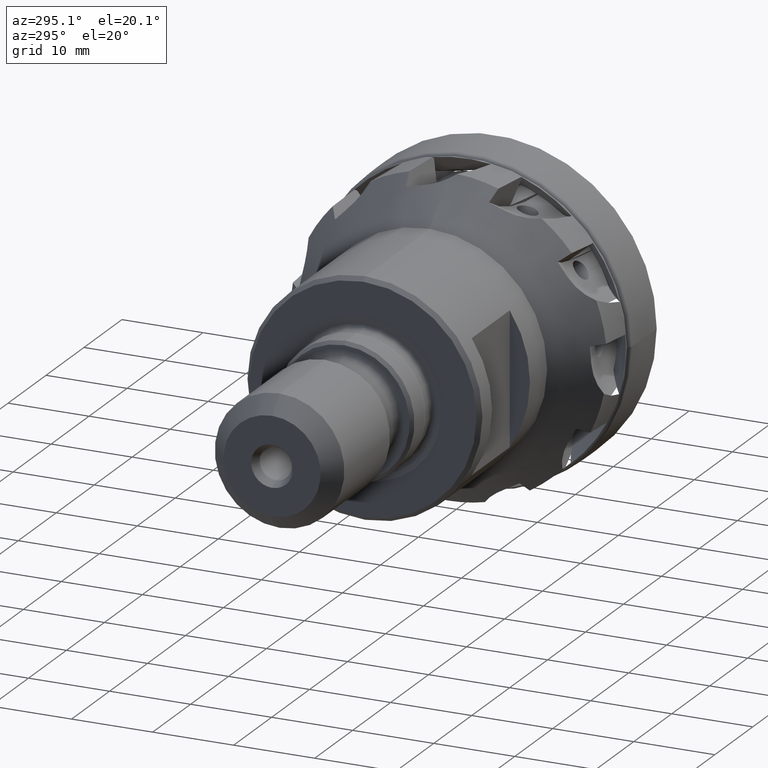
[diagram: clean part render]
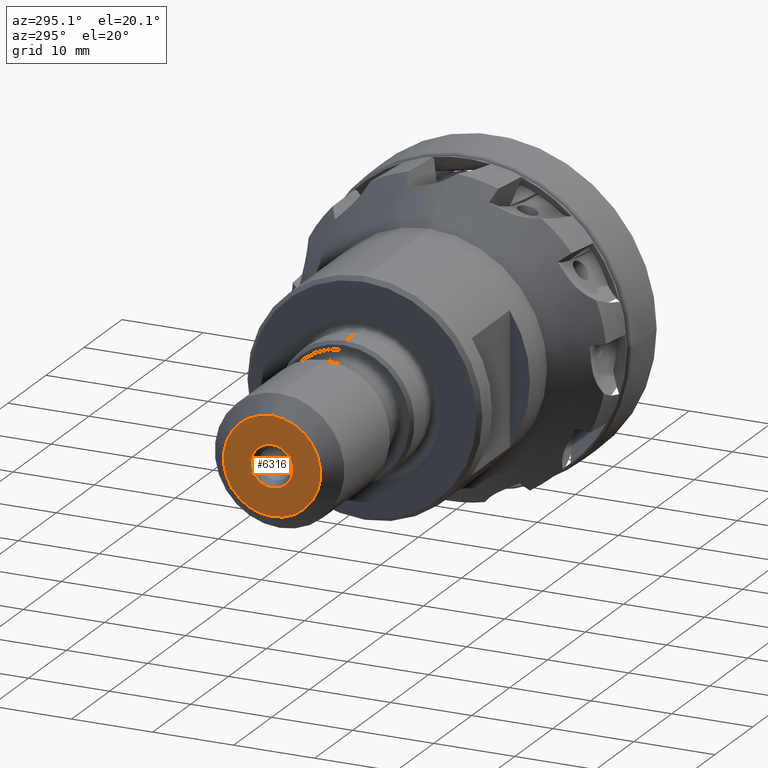
[diagram: same view with one face highlighted and labeled with its STEP entity id]
A machine part, auxiliary view. The second image highlights one B-rep face of the part: STEP entity #6316.
In plain terms, the highlighted planar face has unit normal (-1, 0, 0).
Its self-contained STEP definition (entity closure, byte-faithful):
#151 = EDGE_LOOP ( 'NONE', ( #336, #341 ) ) ;
#165 = EDGE_LOOP ( 'NONE', ( #218, #227 ) ) ;
#218 = ORIENTED_EDGE ( 'NONE', *, *, #5774, .F. ) ;
#227 = ORIENTED_EDGE ( 'NONE', *, *, #9654, .F. ) ;
#336 = ORIENTED_EDGE ( 'NONE', *, *, #9659, .F. ) ;
#341 = ORIENTED_EDGE ( 'NONE', *, *, #5767, .F. ) ;
#1041 = CARTESIAN_POINT ( 'NONE',  ( -58.54999999999999700, 8.572527592243779300E-016, 5.999999998540237000 ) ) ;
#1490 = CARTESIAN_POINT ( 'NONE',  ( -58.54999999999999700, 0.0000000000000000000, 0.0000000000000000000 ) ) ;
#1492 = DIRECTION ( 'NONE',  ( -1.000000000000000000, -0.0000000000000000000, -0.0000000000000000000 ) ) ;
#1494 = DIRECTION ( 'NONE',  ( 0.0000000000000000000, 0.0000000000000000000, 1.000000000000000000 ) ) ;
#1506 = CARTESIAN_POINT ( 'NONE',  ( -58.54999999999999700, 0.0000000000000000000, 0.0000000000000000000 ) ) ;
#1507 = DIRECTION ( 'NONE',  ( 1.000000000000000000, -0.0000000000000000000, -0.0000000000000000000 ) ) ;
#1508 = DIRECTION ( 'NONE',  ( 0.0000000000000000000, 0.0000000000000000000, -1.000000000000000000 ) ) ;
#3385 = CIRCLE ( 'NONE', #3387, 2.577350269189611500 ) ;
#3386 = CIRCLE ( 'NONE', #3394, 5.999999998540237000 ) ;
#3387 = AXIS2_PLACEMENT_3D ( 'NONE', #1490, #1492, #1494 ) ;
#3394 = AXIS2_PLACEMENT_3D ( 'NONE', #1506, #1507, #1508 ) ;
#3523 = CARTESIAN_POINT ( 'NONE',  ( -58.54999999999999700, 0.0000000000000000000, 0.0000000000000000000 ) ) ;
#3524 = DIRECTION ( 'NONE',  ( 1.000000000000000000, -0.0000000000000000000, -0.0000000000000000000 ) ) ;
#3525 = DIRECTION ( 'NONE',  ( 0.0000000000000000000, 0.0000000000000000000, -1.000000000000000000 ) ) ;
#3534 = CARTESIAN_POINT ( 'NONE',  ( -58.54999999999999700, 0.0000000000000000000, 0.0000000000000000000 ) ) ;
#3535 = DIRECTION ( 'NONE',  ( -1.000000000000000000, -0.0000000000000000000, -0.0000000000000000000 ) ) ;
#3536 = DIRECTION ( 'NONE',  ( 0.0000000000000000000, 0.0000000000000000000, 1.000000000000000000 ) ) ;
#4707 = AXIS2_PLACEMENT_3D ( 'NONE', #8413, #8412, #8419 ) ;
#5767 = EDGE_CURVE ( 'NONE', #9471, #9389, #7639, .T. ) ;
#5774 = EDGE_CURVE ( 'NONE', #9343, #9437, #7629, .T. ) ;
#6316 = ADVANCED_FACE ( 'NONE', ( #8414, #8416 ), #8417, .T. ) ;
#7488 = CARTESIAN_POINT ( 'NONE',  ( -58.54999999999999700, 0.0000000000000000000, 2.577350269189611500 ) ) ;
#7545 = CARTESIAN_POINT ( 'NONE',  ( -58.54999999999999700, 0.0000000000000000000, -5.999999998540237000 ) ) ;
#7593 = CARTESIAN_POINT ( 'NONE',  ( -58.54999999999999700, 3.156343757444626900E-016, -2.577350269189611500 ) ) ;
#7629 = CIRCLE ( 'NONE', #7638, 2.577350269189611500 ) ;
#7632 = AXIS2_PLACEMENT_3D ( 'NONE', #3523, #3524, #3525 ) ;
#7638 = AXIS2_PLACEMENT_3D ( 'NONE', #3534, #3535, #3536 ) ;
#7639 = CIRCLE ( 'NONE', #7632, 5.999999998540237000 ) ;
#8412 = DIRECTION ( 'NONE',  ( -1.000000000000000000, 0.0000000000000000000, 0.0000000000000000000 ) ) ;
#8413 = CARTESIAN_POINT ( 'NONE',  ( -58.54999999999999700, -7.170307009007752700E-015, 0.0000000000000000000 ) ) ;
#8414 = FACE_OUTER_BOUND ( 'NONE', #151, .T. ) ;
#8416 = FACE_BOUND ( 'NONE', #165, .T. ) ;
#8417 = PLANE ( 'NONE',  #4707 ) ;
#8419 = DIRECTION ( 'NONE',  ( 0.0000000000000000000, 0.0000000000000000000, 1.000000000000000000 ) ) ;
#9343 = VERTEX_POINT ( 'NONE', #7488 ) ;
#9389 = VERTEX_POINT ( 'NONE', #7545 ) ;
#9437 = VERTEX_POINT ( 'NONE', #7593 ) ;
#9471 = VERTEX_POINT ( 'NONE', #1041 ) ;
#9654 = EDGE_CURVE ( 'NONE', #9437, #9343, #3385, .T. ) ;
#9659 = EDGE_CURVE ( 'NONE', #9389, #9471, #3386, .T. ) ;